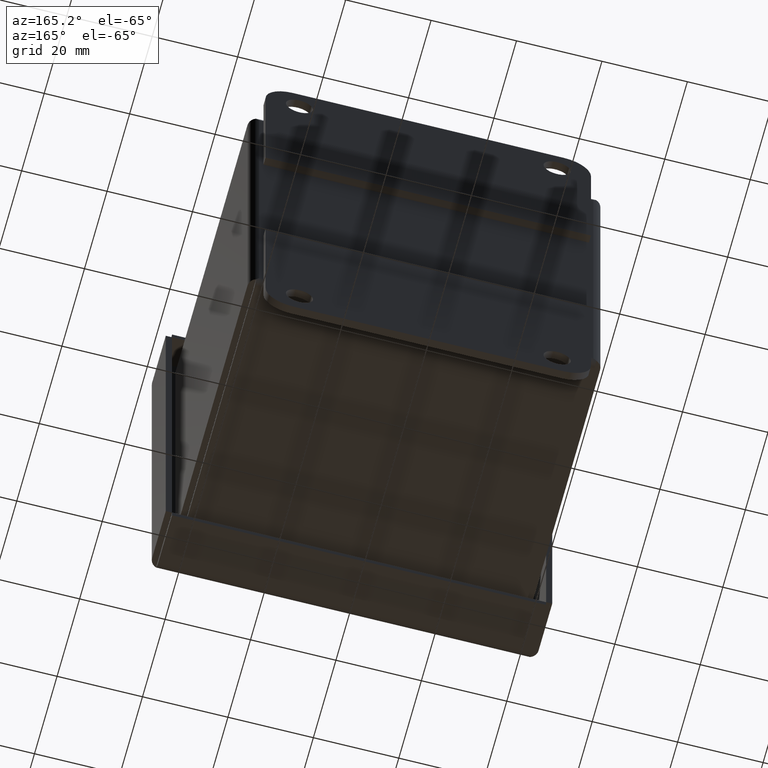
[diagram: clean part render]
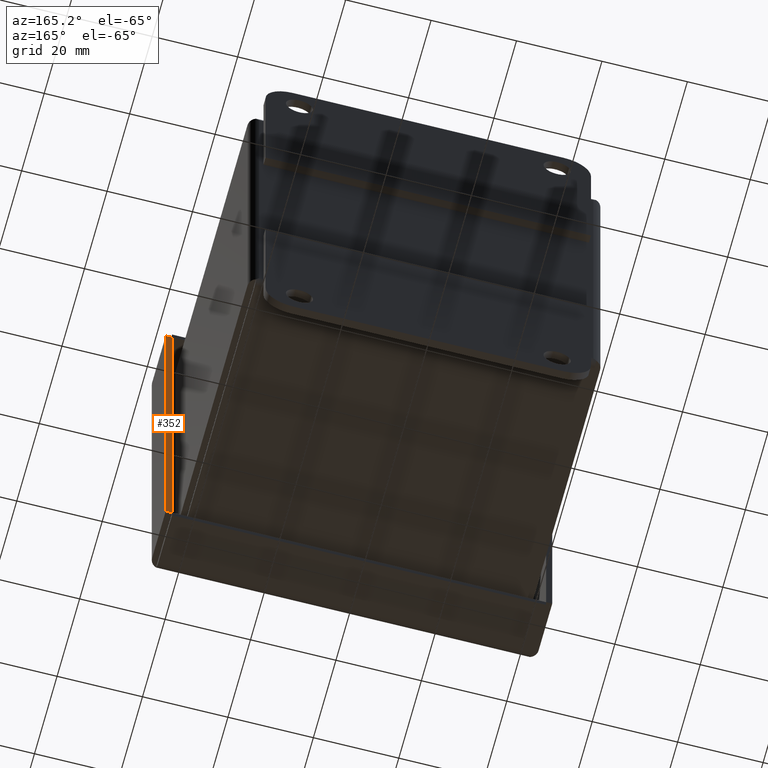
[diagram: same view with one face highlighted and labeled with its STEP entity id]
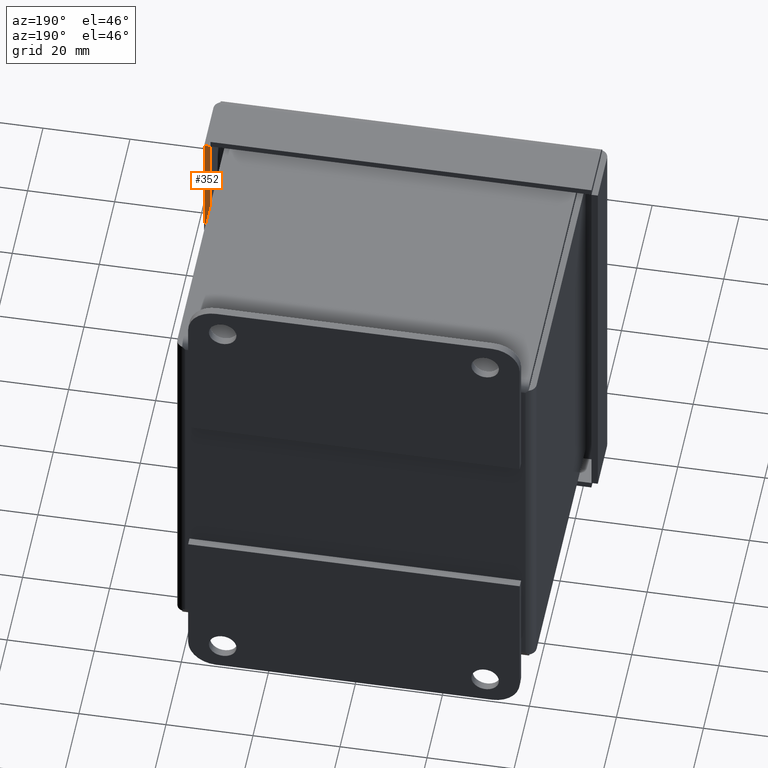
[diagram: same view with one face highlighted and labeled with its STEP entity id]
A machine part, auxiliary view. The second image highlights one B-rep face of the part: STEP entity #352.
A second angle (auxiliary view) of the same face is appended — the face is thin or edge-on in the first view.
In plain terms, the highlighted planar face has unit normal (0, 1, -0).
Its self-contained STEP definition (entity closure, byte-faithful):
#173 = DIRECTION ( 'NONE',  ( -1.000000000000000000, 1.820053914654879712E-16, 1.665334536937739494E-16 ) ) ;
#319 = CARTESIAN_POINT ( 'NONE',  ( 1.781000000000002581, -2.343999999999993644, 12.86899999999999800 ) ) ;
#352 = ADVANCED_FACE ( 'NONE', ( #12302 ), #10951, .T. ) ;
#392 = DIRECTION ( 'NONE',  ( 1.820053914654879465E-16, 1.000000000000000000, -2.077938280955060154E-16 ) ) ;
#505 = ORIENTED_EDGE ( 'NONE', *, *, #6149, .T. ) ;
#512 = ORIENTED_EDGE ( 'NONE', *, *, #9280, .T. ) ;
#657 = LINE ( 'NONE', #11229, #13770 ) ;
#704 = LINE ( 'NONE', #9348, #2816 ) ;
#1220 = LINE ( 'NONE', #7670, #8975 ) ;
#1642 = CARTESIAN_POINT ( 'NONE',  ( 1.781000000000000139, -2.343999999999995421, -1.848212598425190700 ) ) ;
#2712 = DIRECTION ( 'NONE',  ( 1.000000000000000000, -1.820053914654879712E-16, -1.665334536937739494E-16 ) ) ;
#2816 = VECTOR ( 'NONE', #9414, 39.37007874015748143 ) ;
#3134 = DIRECTION ( 'NONE',  ( -1.665334536937739988E-16, -2.077938280955059908E-16, -1.000000000000000000 ) ) ;
#3921 = CARTESIAN_POINT ( 'NONE',  ( 1.724000000000000865, -2.343999999999996309, 1.848212598425203579 ) ) ;
#3954 = AXIS2_PLACEMENT_3D ( 'NONE', #319, #392, #9892 ) ;
#5566 = LINE ( 'NONE', #9887, #7335 ) ;
#6149 = EDGE_CURVE ( 'NONE', #11532, #9818, #5566, .T. ) ;
#7335 = VECTOR ( 'NONE', #173, 39.37007874015748143 ) ;
#7670 = CARTESIAN_POINT ( 'NONE',  ( 1.724000000000002419, -2.343999999999993644, 12.86899999999999800 ) ) ;
#8409 = CARTESIAN_POINT ( 'NONE',  ( 1.781000000000000805, -2.343999999999994532, 1.848212598425201580 ) ) ;
#8975 = VECTOR ( 'NONE', #3134, 39.37007874015748143 ) ;
#9280 = EDGE_CURVE ( 'NONE', #12001, #11532, #704, .T. ) ;
#9347 = ORIENTED_EDGE ( 'NONE', *, *, #9784, .F. ) ;
#9348 = CARTESIAN_POINT ( 'NONE',  ( 1.781000000000002581, -2.343999999999993644, 12.86899999999999800 ) ) ;
#9414 = DIRECTION ( 'NONE',  ( -1.665334536937739988E-16, -2.077938280955059908E-16, -1.000000000000000000 ) ) ;
#9592 = VERTEX_POINT ( 'NONE', #3921 ) ;
#9613 = ORIENTED_EDGE ( 'NONE', *, *, #11479, .T. ) ;
#9784 = EDGE_CURVE ( 'NONE', #9592, #9818, #1220, .T. ) ;
#9803 = CARTESIAN_POINT ( 'NONE',  ( 1.724000000000000199, -2.343999999999996753, -1.848212598425191810 ) ) ;
#9818 = VERTEX_POINT ( 'NONE', #9803 ) ;
#9887 = CARTESIAN_POINT ( 'NONE',  ( 1.781000000000000139, -2.343999999999996753, -1.848212598425187814 ) ) ;
#9892 = DIRECTION ( 'NONE',  ( -1.665334536937739988E-16, -2.077938280955059908E-16, -1.000000000000000000 ) ) ;
#10951 = PLANE ( 'NONE',  #3954 ) ;
#11229 = CARTESIAN_POINT ( 'NONE',  ( 1.781000000000000805, -2.343999999999996309, 1.848212598425197584 ) ) ;
#11479 = EDGE_CURVE ( 'NONE', #9592, #12001, #657, .T. ) ;
#11532 = VERTEX_POINT ( 'NONE', #1642 ) ;
#12001 = VERTEX_POINT ( 'NONE', #8409 ) ;
#12302 = FACE_OUTER_BOUND ( 'NONE', #13892, .T. ) ;
#13770 = VECTOR ( 'NONE', #2712, 39.37007874015748143 ) ;
#13892 = EDGE_LOOP ( 'NONE', ( #9613, #512, #505, #9347 ) ) ;